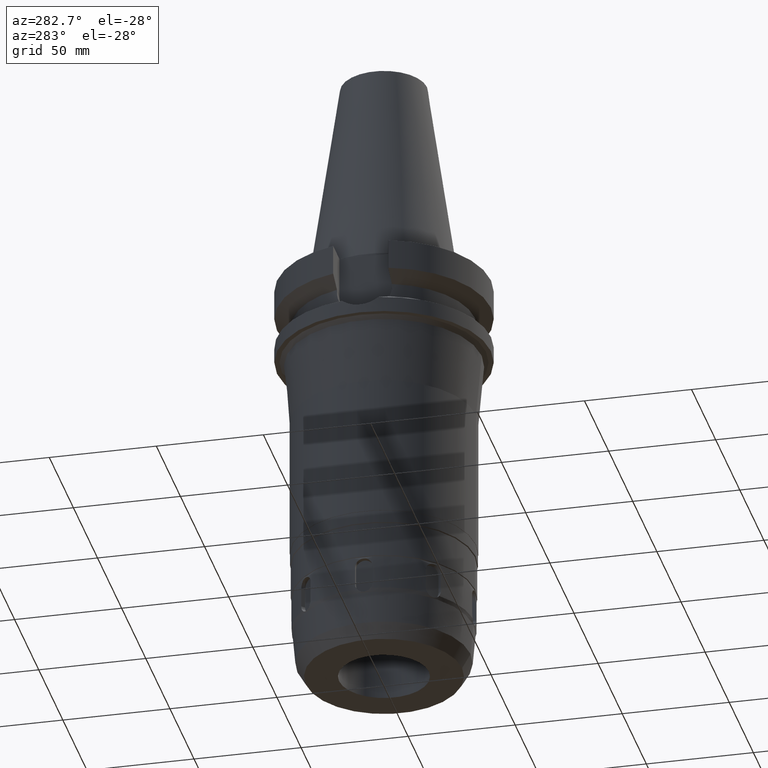
[diagram: clean part render]
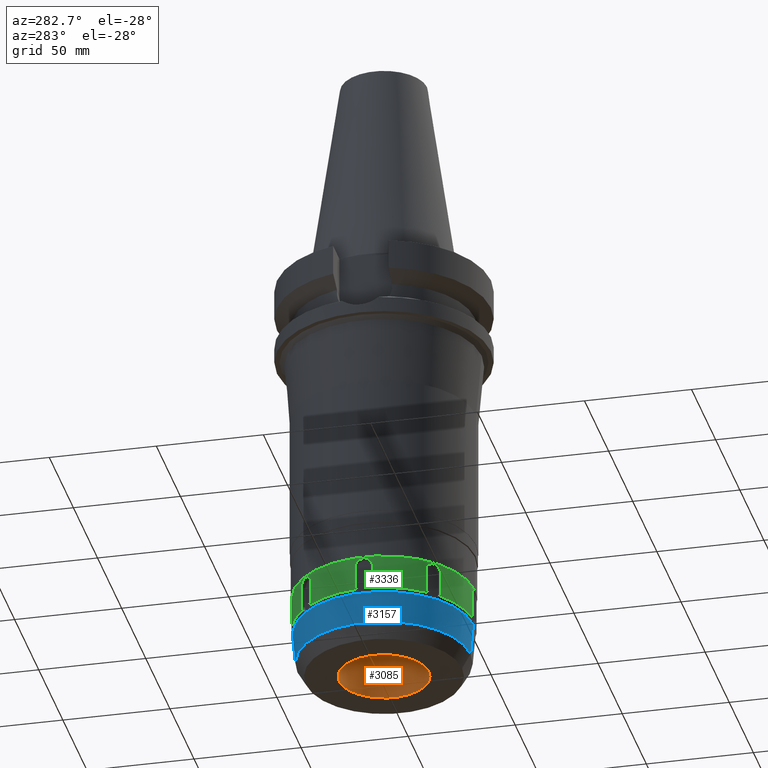
[diagram: same view with three faces highlighted in distinct colors, each labeled with its STEP entity id]
A machine part, auxiliary view with three faces highlighted in distinct colors.
Their STEP definitions:

[orange] entity #3085 — the highlighted cylindrical surface (partial cylindrical patch) has radius 21 mm, axis along (0, 0, -1).
#232=CARTESIAN_POINT('',(0.E0,2.656136442671E-14,-1.09E2));
#233=DIRECTION('',(0.E0,0.E0,1.E0));
#234=DIRECTION('',(0.E0,-1.E0,0.E0));
#235=AXIS2_PLACEMENT_3D('',#232,#233,#234);
#248=DIRECTION('',(0.E0,0.E0,1.E0));
#249=VECTOR('',#248,9.1E1);
#250=CARTESIAN_POINT('',(0.E0,2.1E1,-2.E2));
#251=LINE('',#250,#249);
#255=DIRECTION('',(0.E0,0.E0,1.E0));
#256=VECTOR('',#255,9.1E1);
#257=CARTESIAN_POINT('',(0.E0,-2.1E1,-2.E2));
#258=LINE('',#257,#256);
#286=CARTESIAN_POINT('',(0.E0,2.656136442671E-14,-2.E2));
#287=DIRECTION('',(0.E0,0.E0,-1.E0));
#288=DIRECTION('',(0.E0,1.E0,0.E0));
#289=AXIS2_PLACEMENT_3D('',#286,#287,#288);
#2526=CARTESIAN_POINT('',(0.E0,-2.1E1,-1.09E2));
#2527=CARTESIAN_POINT('',(0.E0,2.1E1,-1.09E2));
#2528=VERTEX_POINT('',#2526);
#2529=VERTEX_POINT('',#2527);
#2530=CARTESIAN_POINT('',(0.E0,2.1E1,-2.E2));
#2531=VERTEX_POINT('',#2530);
#2532=CARTESIAN_POINT('',(0.E0,-2.1E1,-2.E2));
#2533=VERTEX_POINT('',#2532);
#3071=CARTESIAN_POINT('',(0.E0,2.656136442671E-14,1.1689E2));
#3072=DIRECTION('',(0.E0,0.E0,-1.E0));
#3073=DIRECTION('',(0.E0,-1.E0,0.E0));
#3074=AXIS2_PLACEMENT_3D('',#3071,#3072,#3073);
#3075=CYLINDRICAL_SURFACE('',#3074,2.1E1);
#3077=ORIENTED_EDGE('',*,*,#3076,.T.);
#3078=ORIENTED_EDGE('',*,*,#3064,.F.);
#3080=ORIENTED_EDGE('',*,*,#3079,.F.);
#3082=ORIENTED_EDGE('',*,*,#3081,.F.);
#3083=EDGE_LOOP('',(#3077,#3078,#3080,#3082));
#3084=FACE_OUTER_BOUND('',#3083,.F.);
#236=CIRCLE('',#235,2.1E1);
#290=CIRCLE('',#289,2.1E1);
#3064=EDGE_CURVE('',#2528,#2529,#236,.T.);
#3076=EDGE_CURVE('',#2531,#2529,#251,.T.);
#3079=EDGE_CURVE('',#2533,#2528,#258,.T.);
#3081=EDGE_CURVE('',#2531,#2533,#290,.T.);
#3085=ADVANCED_FACE('',(#3084),#3075,.F.);

[blue] entity #3157 — the highlighted conical surface has half-angle 5 deg.
#316=DIRECTION('',(0.E0,8.715574274746E-2,-9.961946980918E-1));
#317=VECTOR('',#316,1.483087674628E1);
#318=CARTESIAN_POINT('',(-9.781053779528E-14,-4.174744542236E1,
-1.783755592173E2));
#319=LINE('',#318,#317);
#323=CARTESIAN_POINT('',(0.E0,-1.050291135337E-14,-1.9315E2));
#324=DIRECTION('',(0.E0,0.E0,-1.E0));
#325=DIRECTION('',(0.E0,-1.E0,0.E0));
#326=AXIS2_PLACEMENT_3D('',#323,#324,#325);
#331=DIRECTION('',(0.E0,-8.715574274746E-2,-9.961946980918E-1));
#332=VECTOR('',#331,1.483087674628E1);
#333=CARTESIAN_POINT('',(0.E0,4.174744542236E1,-1.783755592173E2));
#334=LINE('',#333,#332);
#538=CARTESIAN_POINT('',(0.E0,0.E0,-1.783755592173E2));
#539=DIRECTION('',(0.E0,0.E0,-1.E0));
#540=DIRECTION('',(0.E0,-1.E0,0.E0));
#541=AXIS2_PLACEMENT_3D('',#538,#539,#540);
#2538=CARTESIAN_POINT('',(0.E0,4.045484934395E1,-1.9315E2));
#2539=VERTEX_POINT('',#2538);
#2540=CARTESIAN_POINT('',(0.E0,-4.045484934395E1,-1.9315E2));
#2541=VERTEX_POINT('',#2540);
#2542=CARTESIAN_POINT('',(0.E0,4.174744542236E1,-1.783755592173E2));
#2543=VERTEX_POINT('',#2542);
#2544=CARTESIAN_POINT('',(-1.905084880497E-13,-4.174744542236E1,
-1.783755592173E2));
#2545=VERTEX_POINT('',#2544);
#3143=CARTESIAN_POINT('',(0.E0,-1.050291135337E-14,-1.857627796086E2));
#3144=DIRECTION('',(0.E0,0.E0,1.E0));
#3145=DIRECTION('',(0.E0,1.E0,0.E0));
#3146=AXIS2_PLACEMENT_3D('',#3143,#3144,#3145);
#3147=CONICAL_SURFACE('',#3146,4.110114738316E1,5.E0);
#3149=ORIENTED_EDGE('',*,*,#3148,.F.);
#3151=ORIENTED_EDGE('',*,*,#3150,.F.);
#3153=ORIENTED_EDGE('',*,*,#3152,.T.);
#3154=ORIENTED_EDGE('',*,*,#3136,.T.);
#3155=EDGE_LOOP('',(#3149,#3151,#3153,#3154));
#3156=FACE_OUTER_BOUND('',#3155,.F.);
#327=CIRCLE('',#326,4.045484934395E1);
#542=CIRCLE('',#541,4.174744542236E1);
#3136=EDGE_CURVE('',#2541,#2539,#327,.T.);
#3148=EDGE_CURVE('',#2543,#2539,#334,.T.);
#3150=EDGE_CURVE('',#2545,#2543,#542,.T.);
#3152=EDGE_CURVE('',#2545,#2541,#319,.T.);
#3157=ADVANCED_FACE('',(#3156),#3147,.T.);

[green] entity #3336 — the highlighted cylindrical surface (partial cylindrical patch) has radius 42.25 mm, axis along (0, 0, -1).
#458=CARTESIAN_POINT('',(-2.758562032928E1,3.200150076244E1,-1.765E2));
#466=CARTESIAN_POINT('',(-3.200150076244E1,2.758562032928E1,-1.765E2));
#471=CARTESIAN_POINT('',(0.E0,0.E0,-1.765E2));
#472=DIRECTION('',(0.E0,0.E0,1.E0));
#473=DIRECTION('',(-7.574319707087E-1,6.529140906339E-1,0.E0));
#474=AXIS2_PLACEMENT_3D('',#471,#472,#473);
#487=CARTESIAN_POINT('',(-4.213445739534E1,-3.122498999199E0,-1.765E2));
#492=CARTESIAN_POINT('',(0.E0,0.E0,-1.765E2));
#493=DIRECTION('',(0.E0,0.E0,1.E0));
#494=DIRECTION('',(-9.972652637951E-1,-7.390530175620E-2,0.E0));
#495=AXIS2_PLACEMENT_3D('',#492,#493,#494);
#508=CARTESIAN_POINT('',(-2.758562032928E1,-3.200150076244E1,-1.765E2));
#513=CARTESIAN_POINT('',(0.E0,0.E0,-1.765E2));
#514=DIRECTION('',(0.E0,0.E0,1.E0));
#515=DIRECTION('',(-6.529140906339E-1,-7.574319707087E-1,0.E0));
#516=AXIS2_PLACEMENT_3D('',#513,#514,#515);
#521=CARTESIAN_POINT('',(-3.122498999199E0,-4.213445739534E1,-1.765E2));
#551=CARTESIAN_POINT('',(-3.122498999199E0,4.213445739534E1,-1.765E2));
#556=CARTESIAN_POINT('',(0.E0,0.E0,-1.765E2));
#557=DIRECTION('',(0.E0,0.E0,1.E0));
#558=DIRECTION('',(-7.390530175620E-2,9.972652637951E-1,0.E0));
#559=AXIS2_PLACEMENT_3D('',#556,#557,#558);
#578=CARTESIAN_POINT('',(-3.256949721309E1,2.691264296360E1,-1.65E2));
#579=CARTESIAN_POINT('',(-3.256949721309E1,2.691264296360E1,-1.645688849873E2));
#580=CARTESIAN_POINT('',(-3.248546875935E1,2.701485183233E1,-1.637521824343E2));
#581=CARTESIAN_POINT('',(-3.211240879924E1,2.745971231641E1,-1.626089987667E2));
#582=CARTESIAN_POINT('',(-3.152243833509E1,2.813825147897E1,-1.617114454852E2));
#583=CARTESIAN_POINT('',(-3.074970934464E1,2.898266709700E1,-1.611320937090E2));
#584=CARTESIAN_POINT('',(-3.018051230859E1,2.957001079331E1,-1.609999991705E2));
#585=CARTESIAN_POINT('',(-2.987526155095E1,2.987526155095E1,-1.609999991705E2));
#590=CARTESIAN_POINT('',(-2.987526155095E1,2.987526155095E1,-1.609999991705E2));
#591=CARTESIAN_POINT('',(-2.957073962480E1,3.017978347710E1,-1.609999991705E2));
#592=CARTESIAN_POINT('',(-2.898451010949E1,3.074795411846E1,-1.611314609082E2));
#593=CARTESIAN_POINT('',(-2.814058806772E1,3.152035571890E1,-1.617092554360E2));
#594=CARTESIAN_POINT('',(-2.746138436756E1,3.211099066514E1,-1.626058793071E2));
#595=CARTESIAN_POINT('',(-2.701533627629E1,3.248507132900E1,-1.637496665056E2));
#596=CARTESIAN_POINT('',(-2.691264296360E1,3.256949721309E1,-1.645678665938E2));
#597=CARTESIAN_POINT('',(-2.691264296360E1,3.256949721309E1,-1.65E2));
#602=DIRECTION('',(0.E0,0.E0,-1.E0));
#603=VECTOR('',#602,9.E0);
#604=CARTESIAN_POINT('',(-2.691264296360E1,3.256949721309E1,-1.65E2));
#605=LINE('',#604,#603);
#609=CARTESIAN_POINT('',(-2.691264296360E1,3.256949721309E1,-1.74E2));
#610=CARTESIAN_POINT('',(-2.691264296360E1,3.256949721309E1,-1.743047190178E2));
#611=CARTESIAN_POINT('',(-2.696480976507E1,3.252650789691E1,-1.748965807493E2));
#612=CARTESIAN_POINT('',(-2.719739652033E1,3.233285001376E1,-1.757561695989E2));
#613=CARTESIAN_POINT('',(-2.744053144138E1,3.212656886488E1,-1.762614038065E2));
#614=CARTESIAN_POINT('',(-2.758562032928E1,3.200150076244E1,-1.765E2));
#619=CARTESIAN_POINT('',(-3.122498999199E0,4.213445739534E1,-1.765E2));
#620=CARTESIAN_POINT('',(-3.313531804313E0,4.212030034243E1,-1.762614001029E2));
#621=CARTESIAN_POINT('',(-3.631318569154E0,4.209424060147E1,-1.757561592405E2));
#622=CARTESIAN_POINT('',(-3.932712808757E0,4.206671428935E1,-1.748965845910E2));
#623=CARTESIAN_POINT('',(-4.E0,4.206022467843E1,-1.743047206973E2));
#624=CARTESIAN_POINT('',(-4.E0,4.206022467843E1,-1.74E2));
#629=DIRECTION('',(0.E0,0.E0,1.E0));
#630=VECTOR('',#629,9.E0);
#631=CARTESIAN_POINT('',(-4.E0,4.206022467843E1,-1.74E2));
#632=LINE('',#631,#630);
#636=CARTESIAN_POINT('',(-4.E0,4.206022467843E1,-1.65E2));
#637=CARTESIAN_POINT('',(-4.E0,4.206022467843E1,-1.645688362661E2));
#638=CARTESIAN_POINT('',(-3.868262838950E0,4.207308448351E1,-1.637521077442E2));
#639=CARTESIAN_POINT('',(-3.290114696035E0,4.212383615320E1,-1.626093090032E2));
#640=CARTESIAN_POINT('',(-2.393587156281E0,4.218644013804E1,-1.617119276E2));
#641=CARTESIAN_POINT('',(-1.250315132371E0,4.223714565683E1,-1.611323312336E2));
#642=CARTESIAN_POINT('',(-4.320436857534E-1,4.225E1,-1.61E2));
#643=CARTESIAN_POINT('',(1.513744261802E-13,4.225E1,-1.61E2));
#648=DIRECTION('',(-9.623802278701E-14,0.E0,-1.E0));
#649=VECTOR('',#648,7.5E-1);
#650=CARTESIAN_POINT('',(0.E0,-4.225E1,-1.6025E2));
#651=LINE('',#650,#649);
#655=CARTESIAN_POINT('',(-7.217851709026E-14,-4.225E1,-1.61E2));
#656=CARTESIAN_POINT('',(-4.310044909842E-1,-4.225E1,-1.61E2));
#657=CARTESIAN_POINT('',(-1.247749512725E0,-4.223720821466E1,
-1.611316937313E2));
#658=CARTESIAN_POINT('',(-2.390424416809E0,-4.218662190244E1,
-1.617097108166E2));
#659=CARTESIAN_POINT('',(-3.287906176256E0,-4.212401766600E1,
-1.626061540128E2));
#660=CARTESIAN_POINT('',(-3.867633472948E0,-4.207314657791E1,
-1.637495677616E2));
#661=CARTESIAN_POINT('',(-4.E0,-4.206022467843E1,-1.645678083191E2));
#662=CARTESIAN_POINT('',(-4.E0,-4.206022467843E1,-1.65E2));
#667=DIRECTION('',(0.E0,0.E0,-1.E0));
#668=VECTOR('',#667,9.E0);
#669=CARTESIAN_POINT('',(-4.E0,-4.206022467843E1,-1.65E2));
#670=LINE('',#669,#668);
#674=CARTESIAN_POINT('',(-4.E0,-4.206022467843E1,-1.74E2));
#675=CARTESIAN_POINT('',(-4.E0,-4.206022467843E1,-1.743047190178E2));
#676=CARTESIAN_POINT('',(-3.932714463959E0,-4.206671414050E1,
-1.748965807492E2));
#677=CARTESIAN_POINT('',(-3.631313989731E0,-4.209424100996E1,
-1.757561695988E2));
#678=CARTESIAN_POINT('',(-3.313528839083E0,-4.212030056217E1,
-1.762614038065E2));
#679=CARTESIAN_POINT('',(-3.122498999199E0,-4.213445739534E1,-1.765E2));
#684=CARTESIAN_POINT('',(-2.758562032928E1,-3.200150076244E1,-1.765E2));
#685=CARTESIAN_POINT('',(-2.744052918931E1,-3.212657080619E1,
-1.762614001030E2));
#686=CARTESIAN_POINT('',(-2.719739299342E1,-3.233285296300E1,
-1.757561592408E2));
#687=CARTESIAN_POINT('',(-2.696481104075E1,-3.252650683173E1,
-1.748965845914E2));
#688=CARTESIAN_POINT('',(-2.691264296360E1,-3.256949721309E1,
-1.743047206975E2));
#689=CARTESIAN_POINT('',(-2.691264296360E1,-3.256949721309E1,-1.74E2));
#694=DIRECTION('',(0.E0,0.E0,1.E0));
#695=VECTOR('',#694,9.E0);
#696=CARTESIAN_POINT('',(-2.691264296360E1,-3.256949721309E1,-1.74E2));
#697=LINE('',#696,#695);
#701=CARTESIAN_POINT('',(-2.691264296360E1,-3.256949721309E1,-1.65E2));
#702=CARTESIAN_POINT('',(-2.691264296360E1,-3.256949721309E1,
-1.645688753198E2));
#703=CARTESIAN_POINT('',(-2.701485622383E1,-3.248546516729E1,
-1.637521569779E2));
#704=CARTESIAN_POINT('',(-2.745973281796E1,-3.211239144893E1,
-1.626089589252E2));
#705=CARTESIAN_POINT('',(-2.813829129828E1,-3.152240312371E1,
-1.617114044436E2));
#706=CARTESIAN_POINT('',(-2.898271675564E1,-3.074966233524E1,
-1.611320743048E2));
#707=CARTESIAN_POINT('',(-2.957003114372E1,-3.018049195818E1,
-1.609999991705E2));
#708=CARTESIAN_POINT('',(-2.987526155095E1,-2.987526155095E1,
-1.609999991705E2));
#713=CARTESIAN_POINT('',(-2.987526155095E1,-2.987526155095E1,
-1.609999991705E2));
#714=CARTESIAN_POINT('',(-3.017980055776E1,-2.957072254415E1,
-1.609999991705E2));
#715=CARTESIAN_POINT('',(-3.074799319256E1,-2.898446878157E1,
-1.611314774619E2));
#716=CARTESIAN_POINT('',(-3.152038100770E1,-2.814055937578E1,
-1.617092861177E2));
#717=CARTESIAN_POINT('',(-3.211100088823E1,-2.746137226694E1,
-1.626059035159E2));
#718=CARTESIAN_POINT('',(-3.248507292604E1,-2.701533431760E1,
-1.637496792713E2));
#719=CARTESIAN_POINT('',(-3.256949721309E1,-2.691264296360E1,
-1.645678711014E2));
#720=CARTESIAN_POINT('',(-3.256949721309E1,-2.691264296360E1,-1.65E2));
#725=DIRECTION('',(0.E0,0.E0,-1.E0));
#726=VECTOR('',#725,9.E0);
#727=CARTESIAN_POINT('',(-3.256949721309E1,-2.691264296360E1,-1.65E2));
#728=LINE('',#727,#726);
#732=CARTESIAN_POINT('',(-3.256949721309E1,-2.691264296360E1,-1.74E2));
#733=CARTESIAN_POINT('',(-3.256949721309E1,-2.691264296360E1,
-1.743047190178E2));
#734=CARTESIAN_POINT('',(-3.252650789691E1,-2.696480976507E1,
-1.748965807493E2));
#735=CARTESIAN_POINT('',(-3.233285001376E1,-2.719739652033E1,
-1.757561695989E2));
#736=CARTESIAN_POINT('',(-3.212656886488E1,-2.744053144138E1,
-1.762614038065E2));
#737=CARTESIAN_POINT('',(-3.200150076244E1,-2.758562032928E1,-1.765E2));
#742=CARTESIAN_POINT('',(-4.213445739534E1,-3.122498999199E0,-1.765E2));
#743=CARTESIAN_POINT('',(-4.212030034243E1,-3.313531804313E0,
-1.762614001029E2));
#744=CARTESIAN_POINT('',(-4.209424060147E1,-3.631318569155E0,
-1.757561592405E2));
#745=CARTESIAN_POINT('',(-4.206671428935E1,-3.932712808758E0,
-1.748965845910E2));
#746=CARTESIAN_POINT('',(-4.206022467843E1,-4.E0,-1.743047206973E2));
#747=CARTESIAN_POINT('',(-4.206022467843E1,-4.E0,-1.74E2));
#752=DIRECTION('',(0.E0,0.E0,1.E0));
#753=VECTOR('',#752,9.E0);
#754=CARTESIAN_POINT('',(-4.206022467843E1,-4.E0,-1.74E2));
#755=LINE('',#754,#753);
#759=CARTESIAN_POINT('',(-4.206022467843E1,-4.E0,-1.65E2));
#760=CARTESIAN_POINT('',(-4.206022467843E1,-4.E0,-1.645688922363E2));
#761=CARTESIAN_POINT('',(-4.207307974409E1,-3.868314712179E0,
-1.637522022732E2));
#762=CARTESIAN_POINT('',(-4.212384895588E1,-3.289975001835E0,
-1.626090328894E2));
#763=CARTESIAN_POINT('',(-4.218647513139E1,-2.393033879703E0,
-1.617114859491E2));
#764=CARTESIAN_POINT('',(-4.223716679484E1,-1.249548953592E0,
-1.611321105613E2));
#765=CARTESIAN_POINT('',(-4.225000006475E1,-4.317156859546E-1,
-1.609999991710E2));
#766=CARTESIAN_POINT('',(-4.225000006475E1,-1.280359394231E-13,
-1.609999991710E2));
#771=CARTESIAN_POINT('',(-4.225000006475E1,-1.280359394231E-13,
-1.609999991710E2));
#772=CARTESIAN_POINT('',(-4.225000006475E1,4.306816079204E-1,
-1.609999991710E2));
#773=CARTESIAN_POINT('',(-4.223722898863E1,1.246996019531E0,-1.611314767755E2));
#774=CARTESIAN_POINT('',(-4.218665602100E1,2.389885740378E0,-1.617092802157E2));
#775=CARTESIAN_POINT('',(-4.212402946804E1,3.287778873533E0,-1.626058949143E2));
#776=CARTESIAN_POINT('',(-4.207314134535E1,3.867690425288E0,-1.637496805417E2));
#777=CARTESIAN_POINT('',(-4.206022467843E1,4.E0,-1.645678718545E2));
#778=CARTESIAN_POINT('',(-4.206022467843E1,4.E0,-1.65E2));
#783=DIRECTION('',(0.E0,0.E0,-1.E0));
#784=VECTOR('',#783,9.E0);
#785=CARTESIAN_POINT('',(-4.206022467843E1,4.E0,-1.65E2));
#786=LINE('',#785,#784);
#790=CARTESIAN_POINT('',(-4.206022467843E1,4.E0,-1.74E2));
#791=CARTESIAN_POINT('',(-4.206022467843E1,4.E0,-1.743047190178E2));
#792=CARTESIAN_POINT('',(-4.206671414050E1,3.932714463958E0,-1.748965807492E2));
#793=CARTESIAN_POINT('',(-4.209424100996E1,3.631313989731E0,-1.757561695988E2));
#794=CARTESIAN_POINT('',(-4.212030056217E1,3.313528839083E0,-1.762614038065E2));
#795=CARTESIAN_POINT('',(-4.213445739534E1,3.122498999199E0,-1.765E2));
#800=CARTESIAN_POINT('',(-3.200150076244E1,2.758562032928E1,-1.765E2));
#801=CARTESIAN_POINT('',(-3.212657080619E1,2.744052918931E1,-1.762614001030E2));
#802=CARTESIAN_POINT('',(-3.233285296300E1,2.719739299342E1,-1.757561592408E2));
#803=CARTESIAN_POINT('',(-3.252650683173E1,2.696481104075E1,-1.748965845914E2));
#804=CARTESIAN_POINT('',(-3.256949721309E1,2.691264296360E1,-1.743047206975E2));
#805=CARTESIAN_POINT('',(-3.256949721309E1,2.691264296360E1,-1.74E2));
#810=DIRECTION('',(0.E0,0.E0,1.E0));
#811=VECTOR('',#810,9.E0);
#812=CARTESIAN_POINT('',(-3.256949721309E1,2.691264296360E1,-1.74E2));
#813=LINE('',#812,#811);
#903=DIRECTION('',(1.267814917756E-13,0.E0,-1.E0));
#904=VECTOR('',#903,7.5E-1);
#905=CARTESIAN_POINT('',(5.628830734850E-14,4.225E1,-1.6025E2));
#906=LINE('',#905,#904);
#1228=CARTESIAN_POINT('',(0.E0,0.E0,-1.6025E2));
#1229=DIRECTION('',(0.E0,0.E0,-1.E0));
#1230=DIRECTION('',(0.E0,-1.E0,0.E0));
#1231=AXIS2_PLACEMENT_3D('',#1228,#1229,#1230);
#2560=VERTEX_POINT('',#521);
#2561=VERTEX_POINT('',#674);
#2570=VERTEX_POINT('',#458);
#2571=VERTEX_POINT('',#466);
#2572=CARTESIAN_POINT('',(-4.213445739534E1,3.122498999199E0,-1.765E2));
#2573=VERTEX_POINT('',#2572);
#2574=VERTEX_POINT('',#487);
#2575=CARTESIAN_POINT('',(-3.200150076244E1,-2.758562032928E1,-1.765E2));
#2576=VERTEX_POINT('',#2575);
#2577=VERTEX_POINT('',#508);
#2578=VERTEX_POINT('',#551);
#2579=VERTEX_POINT('',#609);
#2586=CARTESIAN_POINT('',(-3.256949721309E1,2.691264296360E1,-1.74E2));
#2587=VERTEX_POINT('',#2586);
#2588=VERTEX_POINT('',#590);
#2589=VERTEX_POINT('',#597);
#2590=VERTEX_POINT('',#578);
#2591=VERTEX_POINT('',#624);
#2592=CARTESIAN_POINT('',(-4.E0,4.206022467843E1,-1.65E2));
#2593=VERTEX_POINT('',#2592);
#2594=VERTEX_POINT('',#643);
#2595=CARTESIAN_POINT('',(5.628830734850E-14,4.225E1,-1.6025E2));
#2596=VERTEX_POINT('',#2595);
#2597=CARTESIAN_POINT('',(0.E0,-4.225E1,-1.6025E2));
#2598=VERTEX_POINT('',#2597);
#2599=CARTESIAN_POINT('',(-7.217851709026E-14,-4.225E1,-1.61E2));
#2600=VERTEX_POINT('',#2599);
#2601=VERTEX_POINT('',#662);
#2602=VERTEX_POINT('',#689);
#2603=CARTESIAN_POINT('',(-2.691264296360E1,-3.256949721309E1,-1.65E2));
#2604=VERTEX_POINT('',#2603);
#2605=VERTEX_POINT('',#713);
#2606=VERTEX_POINT('',#720);
#2607=CARTESIAN_POINT('',(-3.256949721309E1,-2.691264296360E1,-1.74E2));
#2608=VERTEX_POINT('',#2607);
#2609=VERTEX_POINT('',#747);
#2610=CARTESIAN_POINT('',(-4.206022467843E1,-4.E0,-1.65E2));
#2611=VERTEX_POINT('',#2610);
#2612=VERTEX_POINT('',#771);
#2613=VERTEX_POINT('',#778);
#2614=CARTESIAN_POINT('',(-4.206022467843E1,4.E0,-1.74E2));
#2615=VERTEX_POINT('',#2614);
#3274=CARTESIAN_POINT('',(0.E0,2.656136442671E-14,1.1689E2));
#3275=DIRECTION('',(0.E0,0.E0,-1.E0));
#3276=DIRECTION('',(0.E0,-1.E0,0.E0));
#3277=AXIS2_PLACEMENT_3D('',#3274,#3275,#3276);
#3278=CYLINDRICAL_SURFACE('',#3277,4.225E1);
#3280=ORIENTED_EDGE('',*,*,#3279,.T.);
#3282=ORIENTED_EDGE('',*,*,#3281,.T.);
#3284=ORIENTED_EDGE('',*,*,#3283,.T.);
#3285=ORIENTED_EDGE('',*,*,#3259,.T.);
#3286=ORIENTED_EDGE('',*,*,#3248,.F.);
#3288=ORIENTED_EDGE('',*,*,#3287,.T.);
#3290=ORIENTED_EDGE('',*,*,#3289,.T.);
#3292=ORIENTED_EDGE('',*,*,#3291,.T.);
#3294=ORIENTED_EDGE('',*,*,#3293,.F.);
#3296=ORIENTED_EDGE('',*,*,#3295,.F.);
#3298=ORIENTED_EDGE('',*,*,#3297,.T.);
#3300=ORIENTED_EDGE('',*,*,#3299,.T.);
#3302=ORIENTED_EDGE('',*,*,#3301,.T.);
#3303=ORIENTED_EDGE('',*,*,#3210,.T.);
#3304=ORIENTED_EDGE('',*,*,#3240,.F.);
#3306=ORIENTED_EDGE('',*,*,#3305,.T.);
#3308=ORIENTED_EDGE('',*,*,#3307,.T.);
#3310=ORIENTED_EDGE('',*,*,#3309,.T.);
#3312=ORIENTED_EDGE('',*,*,#3311,.T.);
#3314=ORIENTED_EDGE('',*,*,#3313,.T.);
#3316=ORIENTED_EDGE('',*,*,#3315,.T.);
#3317=ORIENTED_EDGE('',*,*,#3236,.F.);
#3319=ORIENTED_EDGE('',*,*,#3318,.T.);
#3321=ORIENTED_EDGE('',*,*,#3320,.T.);
#3323=ORIENTED_EDGE('',*,*,#3322,.T.);
#3325=ORIENTED_EDGE('',*,*,#3324,.T.);
#3327=ORIENTED_EDGE('',*,*,#3326,.T.);
#3329=ORIENTED_EDGE('',*,*,#3328,.T.);
#3330=ORIENTED_EDGE('',*,*,#3232,.F.);
#3331=ORIENTED_EDGE('',*,*,#3269,.T.);
#3333=ORIENTED_EDGE('',*,*,#3332,.T.);
#3334=EDGE_LOOP('',(#3280,#3282,#3284,#3285,#3286,#3288,#3290,#3292,#3294,#3296,
#3298,#3300,#3302,#3303,#3304,#3306,#3308,#3310,#3312,#3314,#3316,#3317,#3319,
#3321,#3323,#3325,#3327,#3329,#3330,#3331,#3333));
#3335=FACE_OUTER_BOUND('',#3334,.F.);
#475=CIRCLE('',#474,4.224999999999E1);
#496=CIRCLE('',#495,4.224999999999E1);
#517=CIRCLE('',#516,4.224999999999E1);
#560=CIRCLE('',#559,4.224999999999E1);
#586=B_SPLINE_CURVE_WITH_KNOTS('',3,(#578,#579,#580,#581,#582,#583,#584,#585),
.UNSPECIFIED.,.F.,.F.,(4,1,1,1,1,4),(0.E0,2.E-1,4.E-1,6.E-1,8.E-1,1.E0),
.UNSPECIFIED.);
#598=B_SPLINE_CURVE_WITH_KNOTS('',3,(#590,#591,#592,#593,#594,#595,#596,#597),
.UNSPECIFIED.,.F.,.F.,(4,1,1,1,1,4),(0.E0,2.E-1,4.E-1,6.E-1,8.E-1,1.E0),
.UNSPECIFIED.);
#615=B_SPLINE_CURVE_WITH_KNOTS('',3,(#609,#610,#611,#612,#613,#614),
.UNSPECIFIED.,.F.,.F.,(4,1,1,4),(0.E0,3.333333333333E-1,6.666666666667E-1,1.E0),
.UNSPECIFIED.);
#625=B_SPLINE_CURVE_WITH_KNOTS('',3,(#619,#620,#621,#622,#623,#624),
.UNSPECIFIED.,.F.,.F.,(4,1,1,4),(0.E0,3.333333333333E-1,6.666666666667E-1,1.E0),
.UNSPECIFIED.);
#644=B_SPLINE_CURVE_WITH_KNOTS('',3,(#636,#637,#638,#639,#640,#641,#642,#643),
.UNSPECIFIED.,.F.,.F.,(4,1,1,1,1,4),(0.E0,2.E-1,4.E-1,6.E-1,8.E-1,1.E0),
.UNSPECIFIED.);
#663=B_SPLINE_CURVE_WITH_KNOTS('',3,(#655,#656,#657,#658,#659,#660,#661,#662),
.UNSPECIFIED.,.F.,.F.,(4,1,1,1,1,4),(0.E0,2.E-1,4.E-1,6.E-1,8.E-1,1.E0),
.UNSPECIFIED.);
#680=B_SPLINE_CURVE_WITH_KNOTS('',3,(#674,#675,#676,#677,#678,#679),
.UNSPECIFIED.,.F.,.F.,(4,1,1,4),(0.E0,3.333333333333E-1,6.666666666667E-1,1.E0),
.UNSPECIFIED.);
#690=B_SPLINE_CURVE_WITH_KNOTS('',3,(#684,#685,#686,#687,#688,#689),
.UNSPECIFIED.,.F.,.F.,(4,1,1,4),(0.E0,3.333333333333E-1,6.666666666667E-1,1.E0),
.UNSPECIFIED.);
#709=B_SPLINE_CURVE_WITH_KNOTS('',3,(#701,#702,#703,#704,#705,#706,#707,#708),
.UNSPECIFIED.,.F.,.F.,(4,1,1,1,1,4),(0.E0,2.E-1,4.E-1,6.E-1,8.E-1,1.E0),
.UNSPECIFIED.);
#721=B_SPLINE_CURVE_WITH_KNOTS('',3,(#713,#714,#715,#716,#717,#718,#719,#720),
.UNSPECIFIED.,.F.,.F.,(4,1,1,1,1,4),(0.E0,2.E-1,4.E-1,6.E-1,8.E-1,1.E0),
.UNSPECIFIED.);
#738=B_SPLINE_CURVE_WITH_KNOTS('',3,(#732,#733,#734,#735,#736,#737),
.UNSPECIFIED.,.F.,.F.,(4,1,1,4),(0.E0,3.333333333333E-1,6.666666666667E-1,1.E0),
.UNSPECIFIED.);
#748=B_SPLINE_CURVE_WITH_KNOTS('',3,(#742,#743,#744,#745,#746,#747),
.UNSPECIFIED.,.F.,.F.,(4,1,1,4),(0.E0,3.333333333333E-1,6.666666666667E-1,1.E0),
.UNSPECIFIED.);
#767=B_SPLINE_CURVE_WITH_KNOTS('',3,(#759,#760,#761,#762,#763,#764,#765,#766),
.UNSPECIFIED.,.F.,.F.,(4,1,1,1,1,4),(0.E0,2.E-1,4.E-1,6.E-1,8.E-1,1.E0),
.UNSPECIFIED.);
#779=B_SPLINE_CURVE_WITH_KNOTS('',3,(#771,#772,#773,#774,#775,#776,#777,#778),
.UNSPECIFIED.,.F.,.F.,(4,1,1,1,1,4),(0.E0,2.E-1,4.E-1,6.E-1,8.E-1,1.E0),
.UNSPECIFIED.);
#796=B_SPLINE_CURVE_WITH_KNOTS('',3,(#790,#791,#792,#793,#794,#795),
.UNSPECIFIED.,.F.,.F.,(4,1,1,4),(0.E0,3.333333333333E-1,6.666666666667E-1,1.E0),
.UNSPECIFIED.);
#806=B_SPLINE_CURVE_WITH_KNOTS('',3,(#800,#801,#802,#803,#804,#805),
.UNSPECIFIED.,.F.,.F.,(4,1,1,4),(0.E0,3.333333333333E-1,6.666666666667E-1,1.E0),
.UNSPECIFIED.);
#1232=CIRCLE('',#1231,4.225E1);
#3210=EDGE_CURVE('',#2561,#2560,#680,.T.);
#3232=EDGE_CURVE('',#2571,#2573,#475,.T.);
#3236=EDGE_CURVE('',#2574,#2576,#496,.T.);
#3240=EDGE_CURVE('',#2577,#2560,#517,.T.);
#3248=EDGE_CURVE('',#2578,#2570,#560,.T.);
#3259=EDGE_CURVE('',#2579,#2570,#615,.T.);
#3269=EDGE_CURVE('',#2571,#2587,#806,.T.);
#3279=EDGE_CURVE('',#2590,#2588,#586,.T.);
#3281=EDGE_CURVE('',#2588,#2589,#598,.T.);
#3283=EDGE_CURVE('',#2589,#2579,#605,.T.);
#3287=EDGE_CURVE('',#2578,#2591,#625,.T.);
#3289=EDGE_CURVE('',#2591,#2593,#632,.T.);
#3291=EDGE_CURVE('',#2593,#2594,#644,.T.);
#3293=EDGE_CURVE('',#2596,#2594,#906,.T.);
#3295=EDGE_CURVE('',#2598,#2596,#1232,.T.);
#3297=EDGE_CURVE('',#2598,#2600,#651,.T.);
#3299=EDGE_CURVE('',#2600,#2601,#663,.T.);
#3301=EDGE_CURVE('',#2601,#2561,#670,.T.);
#3305=EDGE_CURVE('',#2577,#2602,#690,.T.);
#3307=EDGE_CURVE('',#2602,#2604,#697,.T.);
#3309=EDGE_CURVE('',#2604,#2605,#709,.T.);
#3311=EDGE_CURVE('',#2605,#2606,#721,.T.);
#3313=EDGE_CURVE('',#2606,#2608,#728,.T.);
#3315=EDGE_CURVE('',#2608,#2576,#738,.T.);
#3318=EDGE_CURVE('',#2574,#2609,#748,.T.);
#3320=EDGE_CURVE('',#2609,#2611,#755,.T.);
#3322=EDGE_CURVE('',#2611,#2612,#767,.T.);
#3324=EDGE_CURVE('',#2612,#2613,#779,.T.);
#3326=EDGE_CURVE('',#2613,#2615,#786,.T.);
#3328=EDGE_CURVE('',#2615,#2573,#796,.T.);
#3332=EDGE_CURVE('',#2587,#2590,#813,.T.);
#3336=ADVANCED_FACE('',(#3335),#3278,.T.);